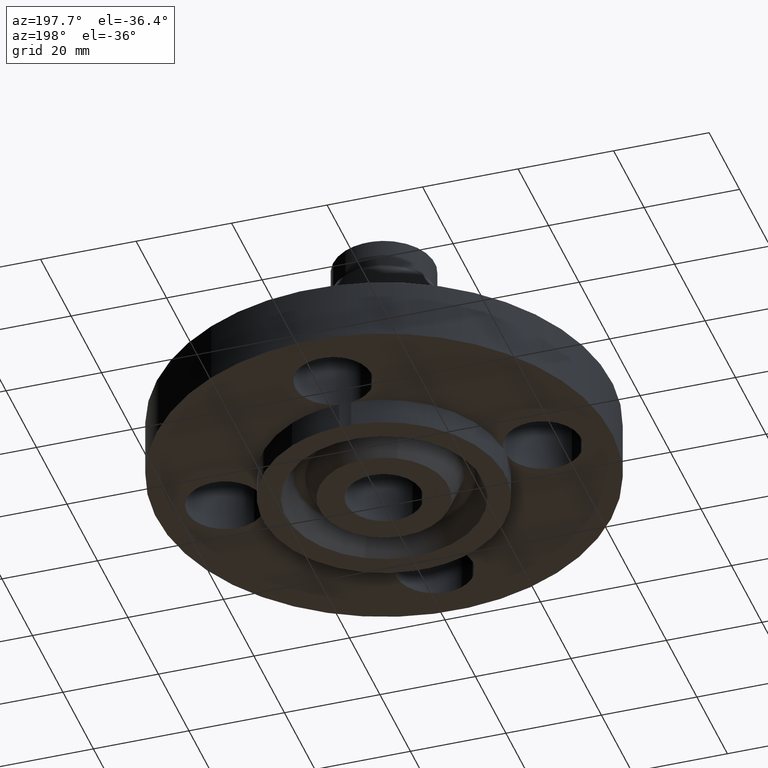
[diagram: clean part render]
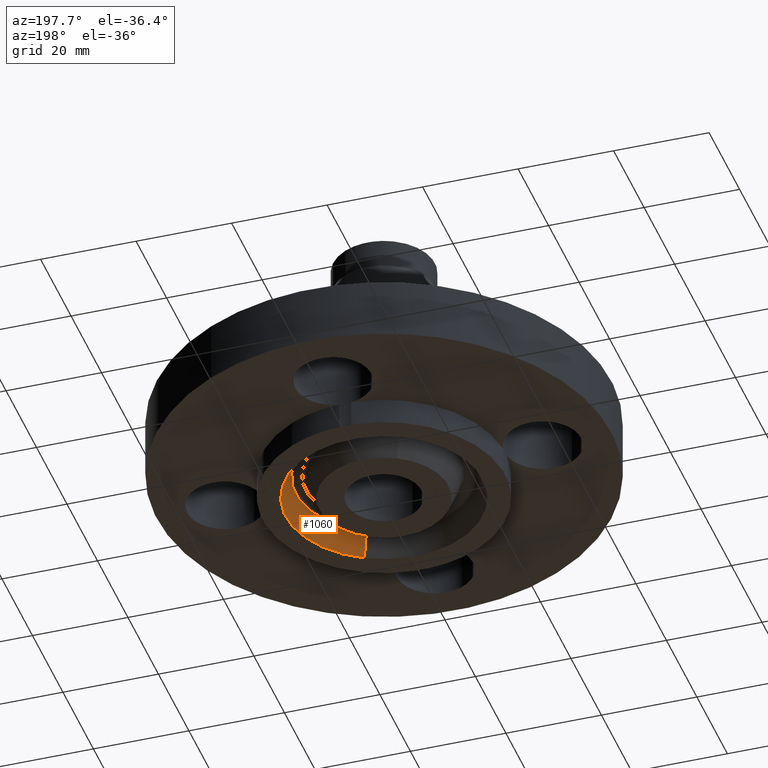
[diagram: same view with one face highlighted and labeled with its STEP entity id]
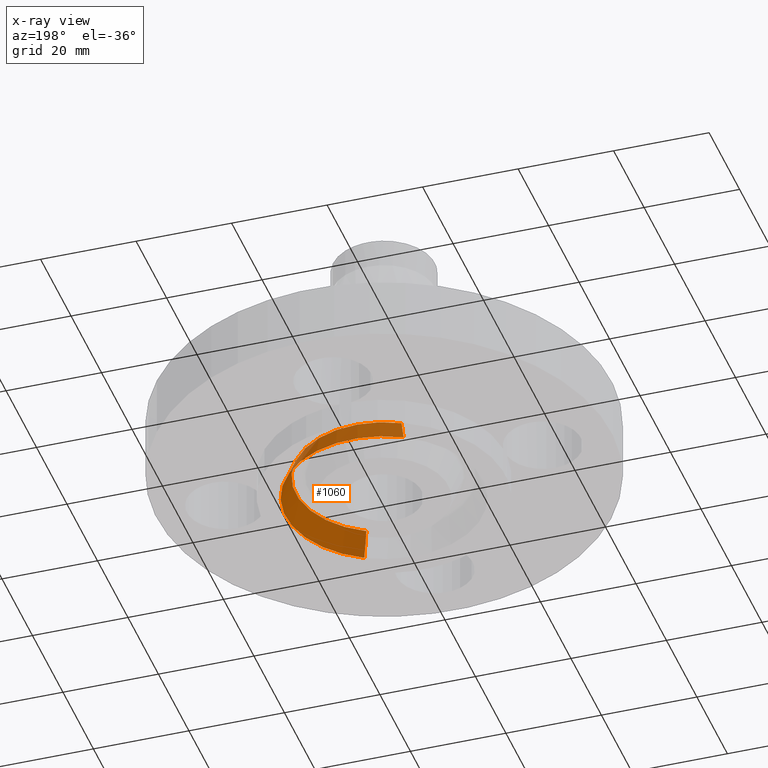
[diagram: x-ray of the same camera — body ghosted, the highlighted face saturated]
A machine part, auxiliary view. The second image highlights one B-rep face of the part: STEP entity #1060.
The next image is the same camera in x-ray: the body ghosted, the highlighted face saturated — about 0% of this face is hidden behind the body in this view.
In plain terms, the highlighted conical surface has half-angle 23 deg.
Its self-contained STEP definition (entity closure, byte-faithful):
#921=AXIS2_PLACEMENT_3D('Circle Axis2P3D',#919,#920,$) ;
#995=AXIS2_PLACEMENT_3D('Cone Axis2P3D',#992,#993,#994) ;
#1016=AXIS2_PLACEMENT_3D('Circle Axis2P3D',#1014,#1015,$) ;
#914=CARTESIAN_POINT('Vertex',(0.389533250117,-0.713035831539,-0.219000000001)) ;
#916=CARTESIAN_POINT('Vertex',(-0.389533250117,0.713035831539,-0.219000000001)) ;
#919=CARTESIAN_POINT('Axis2P3D Location',(1.04902962957E-016,1.04902962957E-016,-0.219000000001)) ;
#961=CARTESIAN_POINT('Vertex',(-0.348809508858,0.638491523181,-0.0188873350169)) ;
#963=CARTESIAN_POINT('Vertex',(0.348809508858,-0.638491523181,-0.0188873350169)) ;
#992=CARTESIAN_POINT('Axis2P3D Location',(0.,0.,-0.0188873350169)) ;
#997=CARTESIAN_POINT('Line Origine',(-0.369171379488,0.67576367736,-0.118943667509)) ;
#1002=CARTESIAN_POINT('Line Origine',(0.369171379488,-0.67576367736,-0.118943667509)) ;
#1014=CARTESIAN_POINT('Axis2P3D Location',(0.,0.,-0.0188873350169)) ;
#920=DIRECTION('Axis2P3D Direction',(0.,0.,-0.0393700787402)) ;
#993=DIRECTION('Axis2P3D Direction',(-0.,-0.,-0.0393700787402)) ;
#994=DIRECTION('Axis2P3D XDirection',(-0.0188750212049,0.0345504945626,0.)) ;
#998=DIRECTION('Vector Direction',(-0.00737505833565,0.0134999537303,-0.0362403485611)) ;
#1003=DIRECTION('Vector Direction',(0.00737505833565,-0.0134999537303,-0.0362403485611)) ;
#1015=DIRECTION('Axis2P3D Direction',(0.,0.,0.0393700787402)) ;
#999=VECTOR('Line Direction',#998,0.0393700787402) ;
#1004=VECTOR('Line Direction',#1003,0.0393700787402) ;
#1055=ORIENTED_EDGE('',*,*,#923,.T.) ;
#1056=ORIENTED_EDGE('',*,*,#1006,.T.) ;
#1057=ORIENTED_EDGE('',*,*,#1018,.T.) ;
#1058=ORIENTED_EDGE('',*,*,#1001,.F.) ;
#1060=ADVANCED_FACE('PartBody',(#1059),#996,.F.) ;
#922=CIRCLE('generated circle',#921,0.812500000003) ;
#1017=CIRCLE('generated circle',#1016,0.727557213313) ;
#996=CONICAL_SURFACE('Cone',#995,0.727557213313,0.401425727959) ;
#923=EDGE_CURVE('',#917,#915,#922,.T.) ;
#1001=EDGE_CURVE('',#917,#962,#1000,.F.) ;
#1006=EDGE_CURVE('',#915,#964,#1005,.F.) ;
#1018=EDGE_CURVE('',#964,#962,#1017,.T.) ;
#1054=EDGE_LOOP('',(#1055,#1056,#1057,#1058)) ;
#1059=FACE_OUTER_BOUND('',#1054,.T.) ;
#1000=LINE('Line',#997,#999) ;
#1005=LINE('Line',#1002,#1004) ;
#915=VERTEX_POINT('',#914) ;
#917=VERTEX_POINT('',#916) ;
#962=VERTEX_POINT('',#961) ;
#964=VERTEX_POINT('',#963) ;